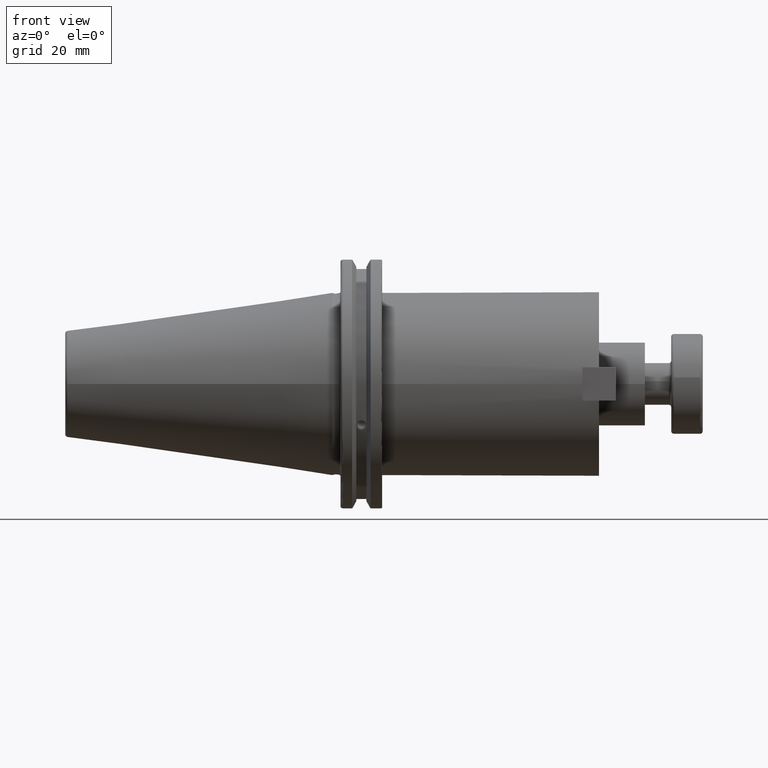
[diagram: clean part render]
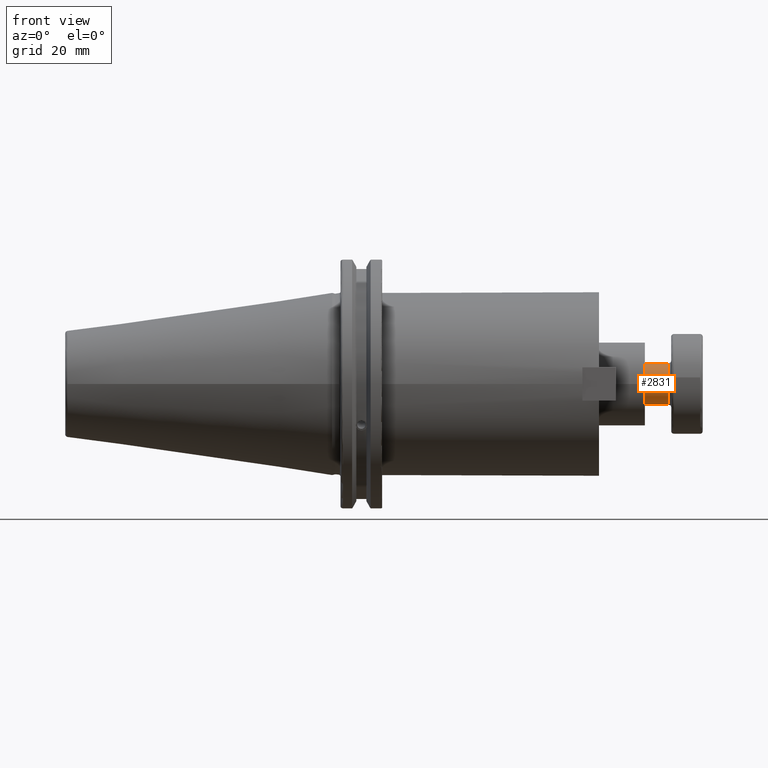
[diagram: same view with one face highlighted and labeled with its STEP entity id]
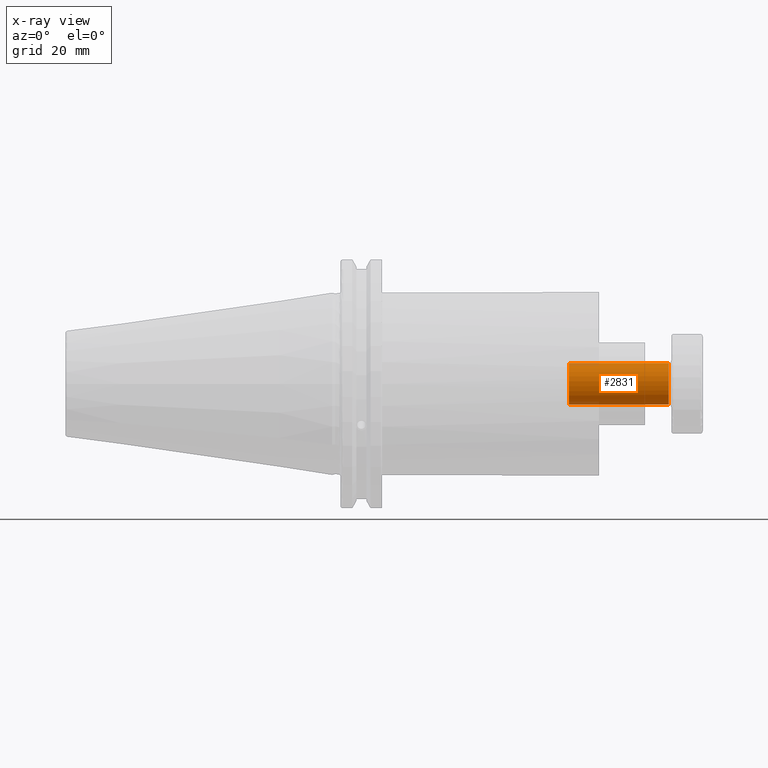
[diagram: x-ray of the same camera — body ghosted, the highlighted face saturated]
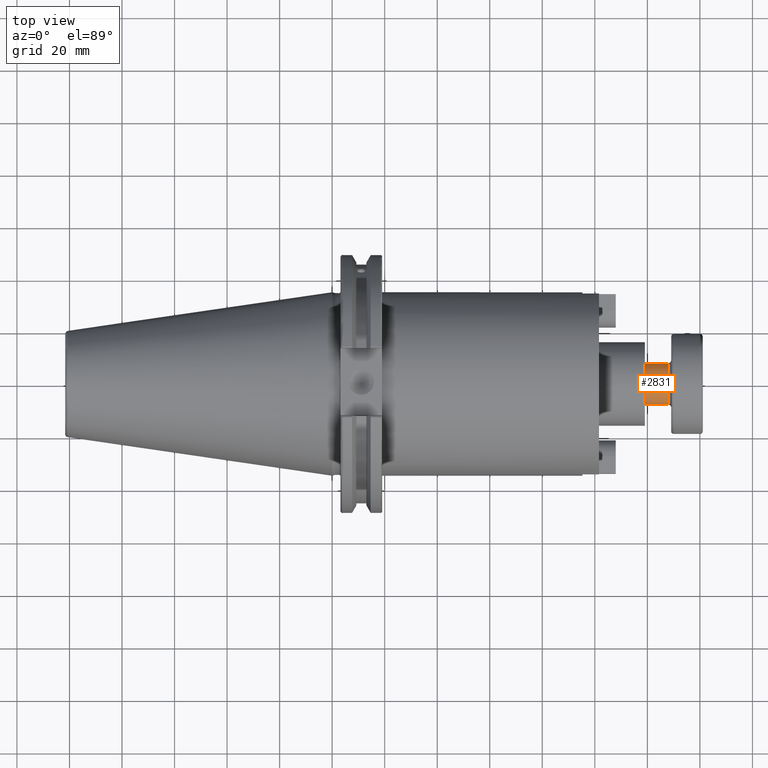
[diagram: same view with one face highlighted and labeled with its STEP entity id]
A machine part, front view. The second image highlights one B-rep face of the part: STEP entity #2831.
The next image is the same camera in x-ray: the body ghosted, the highlighted face saturated — about 4% of this face is hidden behind the body in this view.
A second angle (top view) of the same face is appended — the face is thin or edge-on in the first view.
In plain terms, the highlighted cylindrical surface (bore or boss wall) has radius 7.9375 mm, axis along (-1, 0, 0).
Its self-contained STEP definition (entity closure, byte-faithful):
#552=CYLINDRICAL_SURFACE('',#3260,7.9375);
#709=CIRCLE('',#3258,7.9375);
#710=CIRCLE('',#3259,7.9375);
#711=CIRCLE('',#3261,7.9375);
#712=CIRCLE('',#3262,7.9375);
#849=FACE_OUTER_BOUND('',#1015,.T.);
#1015=EDGE_LOOP('',(#2542,#2543,#2544,#2545,#2546,#2547));
#1177=LINE('',#5502,#1343);
#1343=VECTOR('',#3978,7.9375);
#1571=VERTEX_POINT('',#5495);
#1572=VERTEX_POINT('',#5497);
#1573=VERTEX_POINT('',#5501);
#1574=VERTEX_POINT('',#5503);
#1899=EDGE_CURVE('',#1571,#1572,#709,.T.);
#1900=EDGE_CURVE('',#1572,#1571,#710,.T.);
#1901=EDGE_CURVE('',#1572,#1573,#1177,.T.);
#1902=EDGE_CURVE('',#1574,#1573,#711,.T.);
#1903=EDGE_CURVE('',#1573,#1574,#712,.T.);
#2542=ORIENTED_EDGE('',*,*,#1899,.F.);
#2543=ORIENTED_EDGE('',*,*,#1900,.F.);
#2544=ORIENTED_EDGE('',*,*,#1901,.T.);
#2545=ORIENTED_EDGE('',*,*,#1902,.F.);
#2546=ORIENTED_EDGE('',*,*,#1903,.F.);
#2547=ORIENTED_EDGE('',*,*,#1901,.F.);
#2831=ADVANCED_FACE('',(#849),#552,.T.);
#3258=AXIS2_PLACEMENT_3D('',#5498,#3972,#3973);
#3259=AXIS2_PLACEMENT_3D('',#5499,#3974,#3975);
#3260=AXIS2_PLACEMENT_3D('',#5500,#3976,#3977);
#3261=AXIS2_PLACEMENT_3D('',#5504,#3979,#3980);
#3262=AXIS2_PLACEMENT_3D('',#5505,#3981,#3982);
#3972=DIRECTION('center_axis',(1.,0.,0.));
#3973=DIRECTION('ref_axis',(0.,-1.,0.));
#3974=DIRECTION('center_axis',(1.,0.,0.));
#3975=DIRECTION('ref_axis',(0.,-1.,0.));
#3976=DIRECTION('center_axis',(1.,0.,0.));
#3977=DIRECTION('ref_axis',(0.,1.,0.));
#3978=DIRECTION('',(-1.,0.,0.));
#3979=DIRECTION('center_axis',(-1.,0.,0.));
#3980=DIRECTION('ref_axis',(0.,-1.,1.83697019872103E-16));
#3981=DIRECTION('center_axis',(-1.,0.,0.));
#3982=DIRECTION('ref_axis',(0.,-1.,1.83697019872103E-16));
#5495=CARTESIAN_POINT('',(51.,7.9375,9.72063396823212E-16));
#5497=CARTESIAN_POINT('',(51.,-7.9375,-9.72063396823212E-16));
#5498=CARTESIAN_POINT('Origin',(51.,0.,0.));
#5499=CARTESIAN_POINT('Origin',(51.,0.,0.));
#5500=CARTESIAN_POINT('Origin',(32.,0.,0.));
#5501=CARTESIAN_POINT('',(13.,-7.9375,-9.72063396823212E-16));
#5502=CARTESIAN_POINT('',(32.,-7.9375,-9.72063396823212E-16));
#5503=CARTESIAN_POINT('',(13.,-9.72063396823212E-16,7.9375));
#5504=CARTESIAN_POINT('Origin',(13.,0.,0.));
#5505=CARTESIAN_POINT('Origin',(13.,0.,0.));